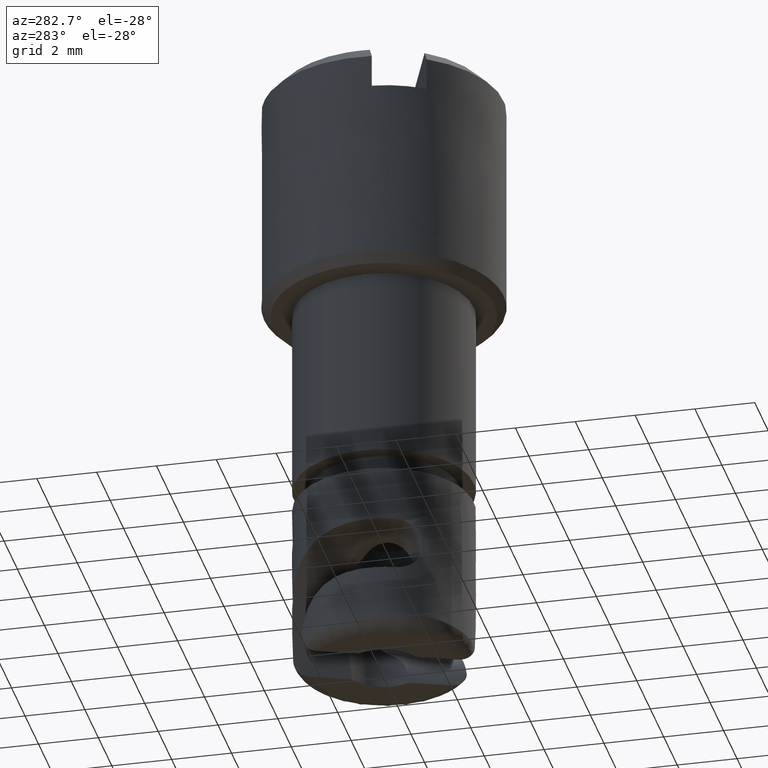
[diagram: clean part render]
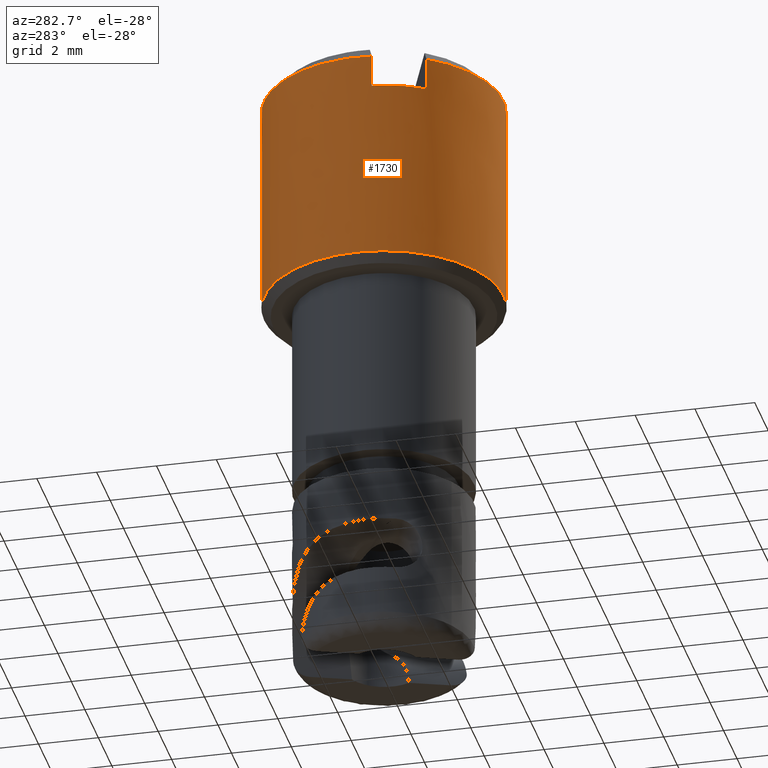
[diagram: same view with one face highlighted and labeled with its STEP entity id]
A machine part, auxiliary view. The second image highlights one B-rep face of the part: STEP entity #1730.
In plain terms, the highlighted face is a freeform B-spline surface patch.
Its self-contained STEP definition (entity closure, byte-faithful):
#66=CARTESIAN_POINT('',(-0.663754479683735,-3.944548388690484,10.502431000000620));
#67=VERTEX_POINT('',#66);
#68=CARTESIAN_POINT('',(1.068951839341587,-3.854526425538705,10.502431000000000));
#69=VERTEX_POINT('',#68);
#70=CARTESIAN_POINT('',(-0.663754479683735,-3.944548388690485,10.502431000000616));
#71=CARTESIAN_POINT('',(-0.334193853080040,-4.000004000000000,10.502431000000000));
#72=CARTESIAN_POINT('',(0.0,-4.000004000000000,10.502431000000000));
#73=CARTESIAN_POINT('',(0.544375207876414,-4.000004000000000,10.502431000000000));
#74=CARTESIAN_POINT('',(1.068951839341587,-3.854526425538705,10.502430999999998));
#82=(BOUNDED_CURVE()B_SPLINE_CURVE(2,(#70,#71,#72,#73,#74),.UNSPECIFIED.,.F.,.U.)B_SPLINE_CURVE_WITH_KNOTS((3,2,3),(0.221449239581989,0.250000000000000,0.295548712194187),.UNSPECIFIED.)CURVE()GEOMETRIC_REPRESENTATION_ITEM()RATIONAL_B_SPLINE_CURVE((0.940741429850930,0.966550703526388,1.0,0.946636364290548,0.912717887657618))REPRESENTATION_ITEM(''));
#83=EDGE_CURVE('',#67,#69,#82,.T.);
#184=CARTESIAN_POINT('',(-4.000004000000000,0.0,10.502431000000000));
#185=VERTEX_POINT('',#184);
#186=CARTESIAN_POINT('',(-4.000004000000000,0.0,10.502431000000000));
#187=CARTESIAN_POINT('',(-4.000004000000000,-3.383153180351509,10.502431000000000));
#188=CARTESIAN_POINT('',(-0.663754479683735,-3.944548388690485,10.502431000000616));
#196=(BOUNDED_CURVE()B_SPLINE_CURVE(2,(#186,#187,#188),.UNSPECIFIED.,.F.,.U.)B_SPLINE_CURVE_WITH_KNOTS((3,3),(0.0,0.221449239581989),.UNSPECIFIED.)CURVE()GEOMETRIC_REPRESENTATION_ITEM()RATIONAL_B_SPLINE_CURVE((1.0,0.740556077660159,0.940741429850929))REPRESENTATION_ITEM(''));
#197=EDGE_CURVE('',#185,#67,#196,.T.);
#199=CARTESIAN_POINT('',(-1.287649507781466,3.787082088508648,10.502431000000000));
#200=VERTEX_POINT('',#199);
#201=CARTESIAN_POINT('',(-1.287649507781466,3.787082088508649,10.502430999999998));
#202=CARTESIAN_POINT('',(-4.000004000000001,2.864851768384308,10.502430999999998));
#203=CARTESIAN_POINT('',(-4.000004000000000,0.0,10.502431000000000));
#211=(BOUNDED_CURVE()B_SPLINE_CURVE(2,(#201,#202,#203),.UNSPECIFIED.,.F.,.U.)B_SPLINE_CURVE_WITH_KNOTS((3,3),(0.804714944503473,1.0),.UNSPECIFIED.)CURVE()GEOMETRIC_REPRESENTATION_ITEM()RATIONAL_B_SPLINE_CURVE((0.899853847769983,0.771209326037834,1.0))REPRESENTATION_ITEM(''));
#212=EDGE_CURVE('',#200,#185,#211,.T.);
#1571=CARTESIAN_POINT('',(-1.287659959889671,3.787078534658885,17.702431000000001));
#1572=VERTEX_POINT('',#1571);
#1615=CARTESIAN_POINT('',(1.068955165442276,-3.854525503131337,17.702431000000001));
#1616=VERTEX_POINT('',#1615);
#1632=CARTESIAN_POINT('',(1.068955165442276,-3.854525503131337,17.702431000000001));
#1633=CARTESIAN_POINT('',(1.068951839341587,-3.854526425538705,10.502431000000000));
#1634=QUASI_UNIFORM_CURVE('',1,(#1632,#1633),.UNSPECIFIED.,.F.,.U.);
#1635=EDGE_CURVE('',#1616,#69,#1634,.T.);
#1640=CARTESIAN_POINT('',(-1.287659959889671,3.787078534658885,17.702431000000001));
#1641=CARTESIAN_POINT('',(-1.287649507781466,3.787082088508648,10.502431000000000));
#1642=QUASI_UNIFORM_CURVE('',1,(#1640,#1641),.UNSPECIFIED.,.F.,.U.);
#1643=EDGE_CURVE('',#1572,#200,#1642,.T.);
#1648=CARTESIAN_POINT('',(1.068954573266531,-3.854525667356303,17.882431000000000));
#1649=CARTESIAN_POINT('',(-2.785571094089772,-4.923480240622836,17.882431000000008));
#1650=CARTESIAN_POINT('',(-3.854525667356303,-1.068954573266531,17.882431000000000));
#1651=CARTESIAN_POINT('',(-4.863996595718218,2.571079999887230,17.882430999999993));
#1652=CARTESIAN_POINT('',(-1.287654059886257,3.787080540743018,17.882431000000000));
#1653=CARTESIAN_POINT('',(1.068954573266531,-3.854525667356303,10.317931000000000));
#1654=CARTESIAN_POINT('',(-2.785571094089772,-4.923480240622836,10.317930999999998));
#1655=CARTESIAN_POINT('',(-3.854525667356303,-1.068954573266531,10.317931000000000));
#1656=CARTESIAN_POINT('',(-4.863996595718218,2.571079999887230,10.317930999999998));
#1657=CARTESIAN_POINT('',(-1.287654059886257,3.787080540743018,10.317930999999996));
#1665=(BOUNDED_SURFACE()B_SPLINE_SURFACE(2,1,((#1648,#1653),(#1649,#1654),(#1650,#1655),(#1651,#1656),(#1652,#1657)),.UNSPECIFIED.,.F.,.F.,.U.)B_SPLINE_SURFACE_WITH_KNOTS((3,2,3),(2,2),(0.0,6.627423625386518,12.989750305757580),(0.0,7.564500000000007),.UNSPECIFIED.)GEOMETRIC_REPRESENTATION_ITEM()RATIONAL_B_SPLINE_SURFACE(((1.0,1.0),(0.707106781186548,0.707106781186548),(1.0,1.0),(0.718822509939086,0.718822509939086),(0.977505800795127,0.977505800795127)))REPRESENTATION_ITEM('')SURFACE());
#1666=CARTESIAN_POINT('',(-3.970212815834940,-0.487280409000824,17.702431000000001));
#1667=VERTEX_POINT('',#1666);
#1668=CARTESIAN_POINT('',(-3.970212815834938,-0.487280409000823,17.702431000000001));
#1669=CARTESIAN_POINT('',(-4.357793264253492,2.670607400676732,17.702431000000004));
#1670=CARTESIAN_POINT('',(-1.368082952373084,3.758773873943755,17.702431000000001));
#1671=CARTESIAN_POINT('',(-1.328022290351609,3.773354774687022,17.702431000000001));
#1672=CARTESIAN_POINT('',(-1.287659959889671,3.787078534658885,17.702431000000001));
#1680=(BOUNDED_CURVE()B_SPLINE_CURVE(2,(#1668,#1669,#1670,#1671,#1672),.UNSPECIFIED.,.F.,.U.)B_SPLINE_CURVE_WITH_KNOTS((3,2,3),(0.0,0.500000000000000,0.508528893110071),.UNSPECIFIED.)CURVE()GEOMETRIC_REPRESENTATION_ITEM()RATIONAL_B_SPLINE_CURVE((1.0,0.782623720251381,1.0,0.996292041890718,0.992710582894919))REPRESENTATION_ITEM(''));
#1681=EDGE_CURVE('',#1667,#1572,#1680,.T.);
#1682=ORIENTED_EDGE('',*,*,#1681,.T.);
#1683=ORIENTED_EDGE('',*,*,#1643,.T.);
#1684=ORIENTED_EDGE('',*,*,#212,.T.);
#1685=ORIENTED_EDGE('',*,*,#197,.T.);
#1686=ORIENTED_EDGE('',*,*,#83,.T.);
#1687=ORIENTED_EDGE('',*,*,#1635,.F.);
#1688=CARTESIAN_POINT('',(-3.354576102903765,-2.178726960828960,17.702431000000001));
#1689=VERTEX_POINT('',#1688);
#1690=CARTESIAN_POINT('',(1.068955165442276,-3.854525503131337,17.702431000000001));
#1691=CARTESIAN_POINT('',(-1.757151091019626,-4.638275067310561,17.702430999999997));
#1692=CARTESIAN_POINT('',(-3.354576102903763,-2.178726960828961,17.702431000000001));
#1700=(BOUNDED_CURVE()B_SPLINE_CURVE(2,(#1690,#1691,#1692),.UNSPECIFIED.,.F.,.U.)B_SPLINE_CURVE_WITH_KNOTS((3,3),(0.531131425206013,1.0),.UNSPECIFIED.)CURVE()GEOMETRIC_REPRESENTATION_ITEM()RATIONAL_B_SPLINE_CURVE((0.974616455383972,0.796158187040492,1.0))REPRESENTATION_ITEM(''));
#1701=EDGE_CURVE('',#1616,#1689,#1700,.T.);
#1702=ORIENTED_EDGE('',*,*,#1701,.T.);
#1703=CARTESIAN_POINT('',(-3.354576102903775,-2.178726960828935,16.605514666332500));
#1704=VERTEX_POINT('',#1703);
#1705=CARTESIAN_POINT('',(-3.354576102903775,-2.178726960828935,16.605514666332500));
#1706=CARTESIAN_POINT('',(-3.354576102903765,-2.178726960828960,17.702431000000001));
#1707=QUASI_UNIFORM_CURVE('',1,(#1705,#1706),.UNSPECIFIED.,.F.,.U.);
#1708=EDGE_CURVE('',#1704,#1689,#1707,.T.);
#1709=ORIENTED_EDGE('',*,*,#1708,.F.);
#1710=CARTESIAN_POINT('',(-3.970212815834965,-0.487280409000754,16.605514666332500));
#1711=VERTEX_POINT('',#1710);
#1712=CARTESIAN_POINT('',(-3.970212815834965,-0.487280409000754,16.605514666332500));
#1713=CARTESIAN_POINT('',(-3.933085393739775,-0.789783370947222,16.612680467805450));
#1714=CARTESIAN_POINT('',(-3.862538713376535,-1.082338949937263,16.616351105988048));
#1715=CARTESIAN_POINT('',(-3.708404174877951,-1.506794015279038,16.616386852922421));
#1716=CARTESIAN_POINT('',(-3.648834807918369,-1.645982143749694,16.615485683147192));
#1717=CARTESIAN_POINT('',(-3.513030892079093,-1.918819070240206,16.611829861075240));
#1718=CARTESIAN_POINT('',(-3.437579037222643,-2.050927716158539,16.609097606581241));
#1719=CARTESIAN_POINT('',(-3.354576102903775,-2.178726960828935,16.605514666332500));
#1720=B_SPLINE_CURVE_WITH_KNOTS('',3,(#1712,#1713,#1714,#1715,#1716,#1717,#1718,#1719),.UNSPECIFIED.,.F.,.U.,(4,2,2,4),(0.0,0.500000000000000,0.750000000000000,1.0),.UNSPECIFIED.);
#1721=EDGE_CURVE('',#1711,#1704,#1720,.T.);
#1722=ORIENTED_EDGE('',*,*,#1721,.F.);
#1723=CARTESIAN_POINT('',(-3.970212815834965,-0.487280409000754,16.605514666332500));
#1724=CARTESIAN_POINT('',(-3.970212815834940,-0.487280409000824,17.702431000000001));
#1725=QUASI_UNIFORM_CURVE('',1,(#1723,#1724),.UNSPECIFIED.,.F.,.U.);
#1726=EDGE_CURVE('',#1711,#1667,#1725,.T.);
#1727=ORIENTED_EDGE('',*,*,#1726,.T.);
#1728=EDGE_LOOP('',(#1682,#1683,#1684,#1685,#1686,#1687,#1702,#1709,#1722,#1727));
#1729=FACE_OUTER_BOUND('',#1728,.T.);
#1730=ADVANCED_FACE('',(#1729),#1665,.T.);